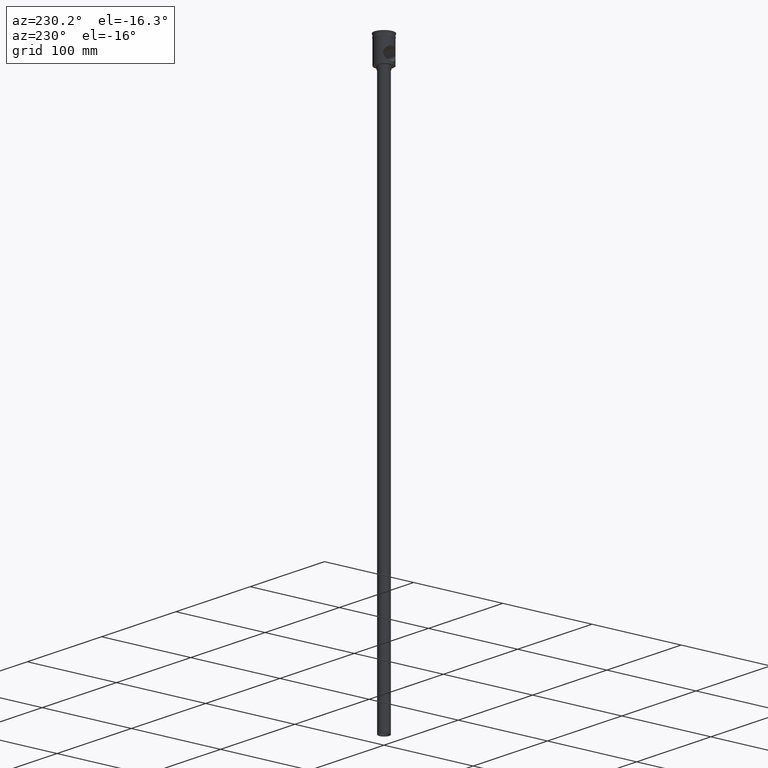
[diagram: clean part render]
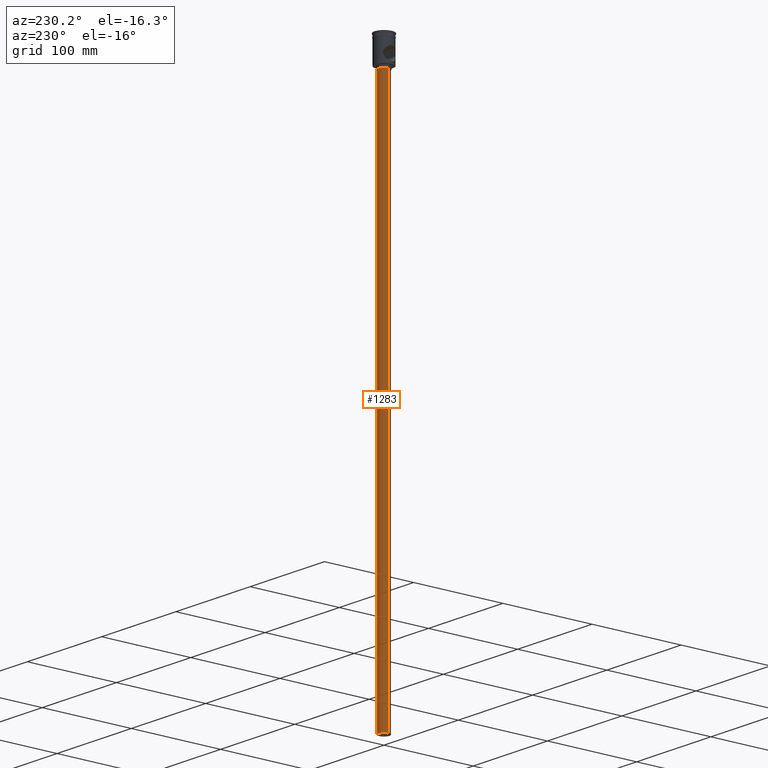
[diagram: same view with one face highlighted and labeled with its STEP entity id]
A machine part, auxiliary view. The second image highlights one B-rep face of the part: STEP entity #1283.
In plain terms, the highlighted cylindrical surface (edge-blend (fillet) strip) has radius 6 mm, axis along (-0, -0, 1).
Its self-contained STEP definition (entity closure, byte-faithful):
#11 = DIRECTION ( 'NONE',  ( 0.000000000000000000, 0.000000000000000000, -1.000000000000000000 ) ) ;
#15 = CARTESIAN_POINT ( 'NONE',  ( 0.000000000000000000, 0.000000000000000000, -629.5000000000000000 ) ) ;
#47 = AXIS2_PLACEMENT_3D ( 'NONE', #504, #708, #1064 ) ;
#91 = ORIENTED_EDGE ( 'NONE', *, *, #676, .T. ) ;
#109 = LINE ( 'NONE', #201, #825 ) ;
#133 = DIRECTION ( 'NONE',  ( -0.000000000000000000, -0.000000000000000000, 1.000000000000000000 ) ) ;
#137 = VERTEX_POINT ( 'NONE', #614 ) ;
#201 = CARTESIAN_POINT ( 'NONE',  ( 6.000000000000000888, 0.000000000000000000, -629.5000000000000000 ) ) ;
#211 = LINE ( 'NONE', #1243, #1310 ) ;
#223 = EDGE_CURVE ( 'NONE', #1275, #911, #721, .T. ) ;
#234 = DIRECTION ( 'NONE',  ( -1.000000000000000000, 0.000000000000000000, 0.000000000000000000 ) ) ;
#247 = CARTESIAN_POINT ( 'NONE',  ( -6.000000000000000888, 7.347880794884120722E-16, -32.50000000000000000 ) ) ;
#389 = ORIENTED_EDGE ( 'NONE', *, *, #1498, .F. ) ;
#424 = AXIS2_PLACEMENT_3D ( 'NONE', #1066, #11, #234 ) ;
#463 = ORIENTED_EDGE ( 'NONE', *, *, #223, .T. ) ;
#492 = DIRECTION ( 'NONE',  ( 1.000000000000000000, 0.000000000000000000, 0.000000000000000000 ) ) ;
#504 = CARTESIAN_POINT ( 'NONE',  ( 0.000000000000000000, 0.000000000000000000, -32.50000000000000000 ) ) ;
#543 = EDGE_LOOP ( 'NONE', ( #1523, #91, #463, #389 ) ) ;
#614 = CARTESIAN_POINT ( 'NONE',  ( 6.000000000000000888, 0.000000000000000000, -629.5000000000000000 ) ) ;
#676 = EDGE_CURVE ( 'NONE', #1023, #1275, #211, .T. ) ;
#680 = DIRECTION ( 'NONE',  ( -0.000000000000000000, -0.000000000000000000, 1.000000000000000000 ) ) ;
#700 = AXIS2_PLACEMENT_3D ( 'NONE', #15, #133, #492 ) ;
#708 = DIRECTION ( 'NONE',  ( 0.000000000000000000, 0.000000000000000000, -1.000000000000000000 ) ) ;
#721 = CIRCLE ( 'NONE', #47, 6.000000000000000888 ) ;
#825 = VECTOR ( 'NONE', #680, 1000.000000000000000 ) ;
#848 = CIRCLE ( 'NONE', #424, 6.000000000000000888 ) ;
#899 = EDGE_CURVE ( 'NONE', #1023, #137, #848, .T. ) ;
#911 = VERTEX_POINT ( 'NONE', #1308 ) ;
#1023 = VERTEX_POINT ( 'NONE', #1321 ) ;
#1064 = DIRECTION ( 'NONE',  ( -1.000000000000000000, 0.000000000000000000, 0.000000000000000000 ) ) ;
#1066 = CARTESIAN_POINT ( 'NONE',  ( 0.000000000000000000, 0.000000000000000000, -629.5000000000000000 ) ) ;
#1070 = FACE_OUTER_BOUND ( 'NONE', #543, .T. ) ;
#1137 = DIRECTION ( 'NONE',  ( -0.000000000000000000, -0.000000000000000000, 1.000000000000000000 ) ) ;
#1243 = CARTESIAN_POINT ( 'NONE',  ( -6.000000000000000888, 7.347880794884120722E-16, -629.5000000000000000 ) ) ;
#1275 = VERTEX_POINT ( 'NONE', #247 ) ;
#1283 = ADVANCED_FACE ( 'NONE', ( #1070 ), #1427, .T. ) ;
#1308 = CARTESIAN_POINT ( 'NONE',  ( 6.000000000000000888, 0.000000000000000000, -32.50000000000000000 ) ) ;
#1310 = VECTOR ( 'NONE', #1137, 1000.000000000000000 ) ;
#1321 = CARTESIAN_POINT ( 'NONE',  ( -6.000000000000000888, 7.347880794884120722E-16, -629.5000000000000000 ) ) ;
#1427 = CYLINDRICAL_SURFACE ( 'NONE', #700, 6.000000000000000888 ) ;
#1498 = EDGE_CURVE ( 'NONE', #137, #911, #109, .T. ) ;
#1523 = ORIENTED_EDGE ( 'NONE', *, *, #899, .F. ) ;